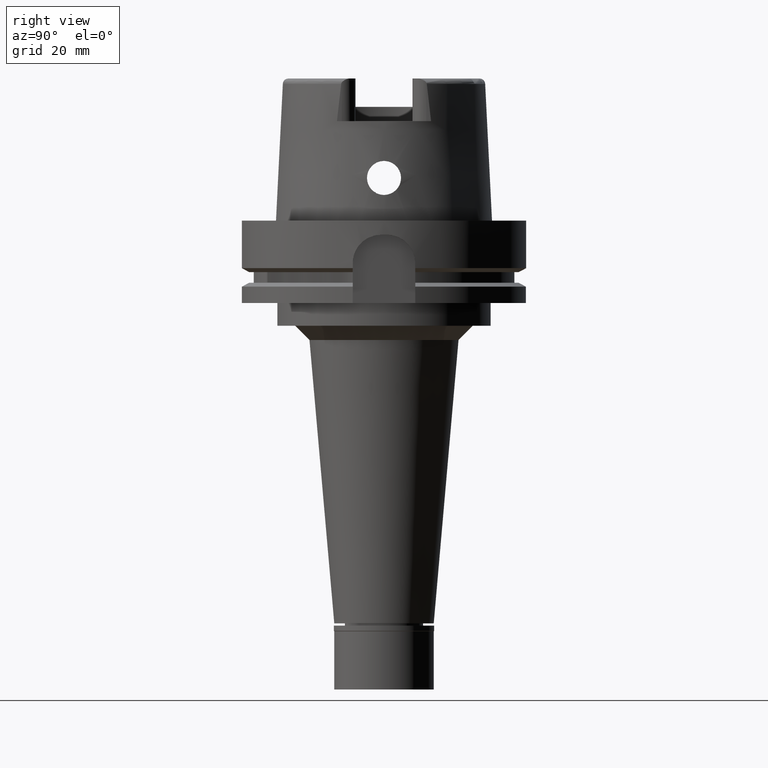
[diagram: clean part render]
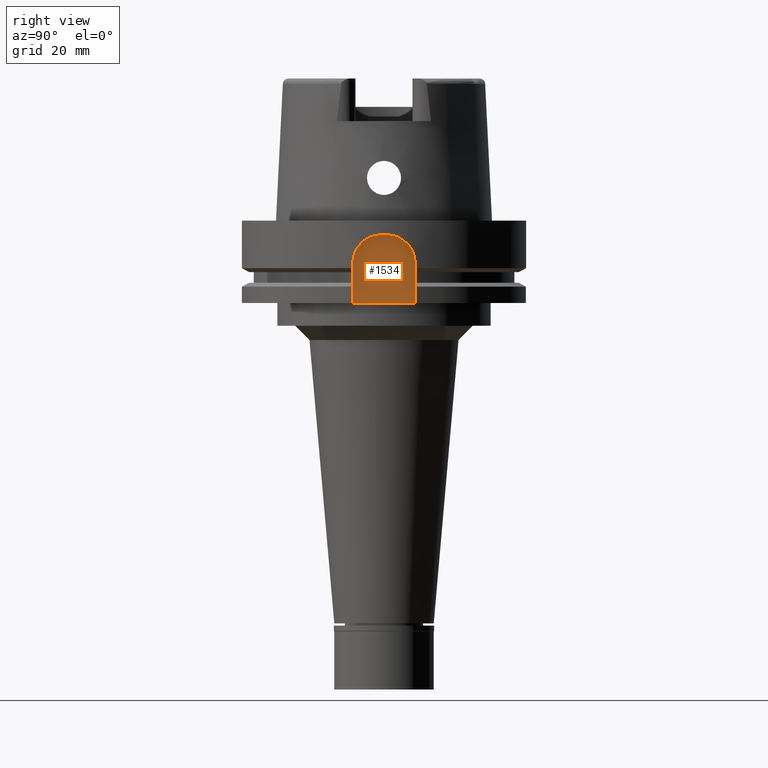
[diagram: same view with one face highlighted and labeled with its STEP entity id]
A machine part, right view. The second image highlights one B-rep face of the part: STEP entity #1534.
In plain terms, the highlighted planar face has unit normal (1, 0, 0).
Its self-contained STEP definition (entity closure, byte-faithful):
#242 = AXIS2_PLACEMENT_3D ( 'NONE', #319, #658, #5467 ) ;
#289 = EDGE_CURVE ( 'NONE', #5000, #3106, #4891, .T. ) ;
#319 = CARTESIAN_POINT ( 'NONE',  ( 44.00000000000000000, 1.000000000000000000, -15.00000000000000000 ) ) ;
#540 = ORIENTED_EDGE ( 'NONE', *, *, #1435, .F. ) ;
#571 = PLANE ( 'NONE',  #5368 ) ;
#658 = DIRECTION ( 'NONE',  ( -1.000000000000000000, 0.0000000000000000000, 0.0000000000000000000 ) ) ;
#694 = DIRECTION ( 'NONE',  ( 0.0000000000000000000, 0.0000000000000000000, -1.000000000000000000 ) ) ;
#800 = VERTEX_POINT ( 'NONE', #4950 ) ;
#836 = ORIENTED_EDGE ( 'NONE', *, *, #289, .F. ) ;
#946 = DIRECTION ( 'NONE',  ( 0.0000000000000000000, 0.0000000000000000000, 1.000000000000000000 ) ) ;
#1189 = AXIS2_PLACEMENT_3D ( 'NONE', #4595, #1202, #2440 ) ;
#1201 = CARTESIAN_POINT ( 'NONE',  ( 44.00000000000000000, -1.000000000000000000, -5.000000000000000000 ) ) ;
#1202 = DIRECTION ( 'NONE',  ( -1.000000000000000000, 0.0000000000000000000, 0.0000000000000000000 ) ) ;
#1373 = VERTEX_POINT ( 'NONE', #4811 ) ;
#1435 = EDGE_CURVE ( 'NONE', #800, #5000, #4453, .T. ) ;
#1534 = ADVANCED_FACE ( 'NONE', ( #2423 ), #571, .T. ) ;
#1664 = VECTOR ( 'NONE', #946, 1000.000000000000000 ) ;
#1920 = CARTESIAN_POINT ( 'NONE',  ( 44.00000000000000000, -1.000000000000000000, -5.000000000000000000 ) ) ;
#1936 = LINE ( 'NONE', #3717, #5391 ) ;
#2006 = VERTEX_POINT ( 'NONE', #2489 ) ;
#2026 = ORIENTED_EDGE ( 'NONE', *, *, #3444, .F. ) ;
#2344 = EDGE_LOOP ( 'NONE', ( #4337, #2477, #5258, #836, #540, #2026 ) ) ;
#2423 = FACE_OUTER_BOUND ( 'NONE', #2344, .T. ) ;
#2440 = DIRECTION ( 'NONE',  ( 0.0000000000000000000, -1.000000000000000000, 0.0000000000000000000 ) ) ;
#2474 = LINE ( 'NONE', #4622, #3948 ) ;
#2477 = ORIENTED_EDGE ( 'NONE', *, *, #5587, .F. ) ;
#2489 = CARTESIAN_POINT ( 'NONE',  ( 44.00000000000000000, 11.00000000000000000, -15.00000000000000000 ) ) ;
#2541 = CARTESIAN_POINT ( 'NONE',  ( 44.00000000000000000, 11.00000000000000000, -29.00000000000000000 ) ) ;
#2671 = DIRECTION ( 'NONE',  ( 1.000000000000000000, 0.0000000000000000000, 0.0000000000000000000 ) ) ;
#2946 = VECTOR ( 'NONE', #4971, 1000.000000000000000 ) ;
#3106 = VERTEX_POINT ( 'NONE', #1201 ) ;
#3225 = CIRCLE ( 'NONE', #242, 10.00000000000000000 ) ;
#3278 = LINE ( 'NONE', #1920, #2946 ) ;
#3444 = EDGE_CURVE ( 'NONE', #4270, #800, #2474, .T. ) ;
#3575 = DIRECTION ( 'NONE',  ( 0.0000000000000000000, 1.000000000000000000, 0.0000000000000000000 ) ) ;
#3717 = CARTESIAN_POINT ( 'NONE',  ( 44.00000000000000000, 11.00000000000000000, -15.00000000000000000 ) ) ;
#3751 = CARTESIAN_POINT ( 'NONE',  ( 44.00000000000000000, -11.00000000000000000, -15.00000000000000000 ) ) ;
#3948 = VECTOR ( 'NONE', #5531, 1000.000000000000000 ) ;
#4161 = CARTESIAN_POINT ( 'NONE',  ( 44.00000000000000000, 0.0000000000000000000, 0.0000000000000000000 ) ) ;
#4270 = VERTEX_POINT ( 'NONE', #2541 ) ;
#4337 = ORIENTED_EDGE ( 'NONE', *, *, #5505, .F. ) ;
#4453 = LINE ( 'NONE', #4901, #1664 ) ;
#4540 = EDGE_CURVE ( 'NONE', #3106, #1373, #3278, .T. ) ;
#4595 = CARTESIAN_POINT ( 'NONE',  ( 44.00000000000000000, -1.000000000000000000, -15.00000000000000000 ) ) ;
#4622 = CARTESIAN_POINT ( 'NONE',  ( 44.00000000000000000, 11.00000000000000000, -29.00000000000000000 ) ) ;
#4811 = CARTESIAN_POINT ( 'NONE',  ( 44.00000000000000000, 1.000000000000000000, -5.000000000000000000 ) ) ;
#4891 = CIRCLE ( 'NONE', #1189, 9.999999999999998224 ) ;
#4901 = CARTESIAN_POINT ( 'NONE',  ( 44.00000000000000000, -11.00000000000000000, -29.00000000000000000 ) ) ;
#4950 = CARTESIAN_POINT ( 'NONE',  ( 44.00000000000000000, -11.00000000000000000, -29.00000000000000000 ) ) ;
#4971 = DIRECTION ( 'NONE',  ( 0.0000000000000000000, 1.000000000000000000, 0.0000000000000000000 ) ) ;
#5000 = VERTEX_POINT ( 'NONE', #3751 ) ;
#5258 = ORIENTED_EDGE ( 'NONE', *, *, #4540, .F. ) ;
#5368 = AXIS2_PLACEMENT_3D ( 'NONE', #4161, #2671, #3575 ) ;
#5391 = VECTOR ( 'NONE', #694, 1000.000000000000000 ) ;
#5467 = DIRECTION ( 'NONE',  ( 0.0000000000000000000, 0.0000000000000000000, 1.000000000000000000 ) ) ;
#5505 = EDGE_CURVE ( 'NONE', #2006, #4270, #1936, .T. ) ;
#5531 = DIRECTION ( 'NONE',  ( 0.0000000000000000000, -1.000000000000000000, 0.0000000000000000000 ) ) ;
#5587 = EDGE_CURVE ( 'NONE', #1373, #2006, #3225, .T. ) ;